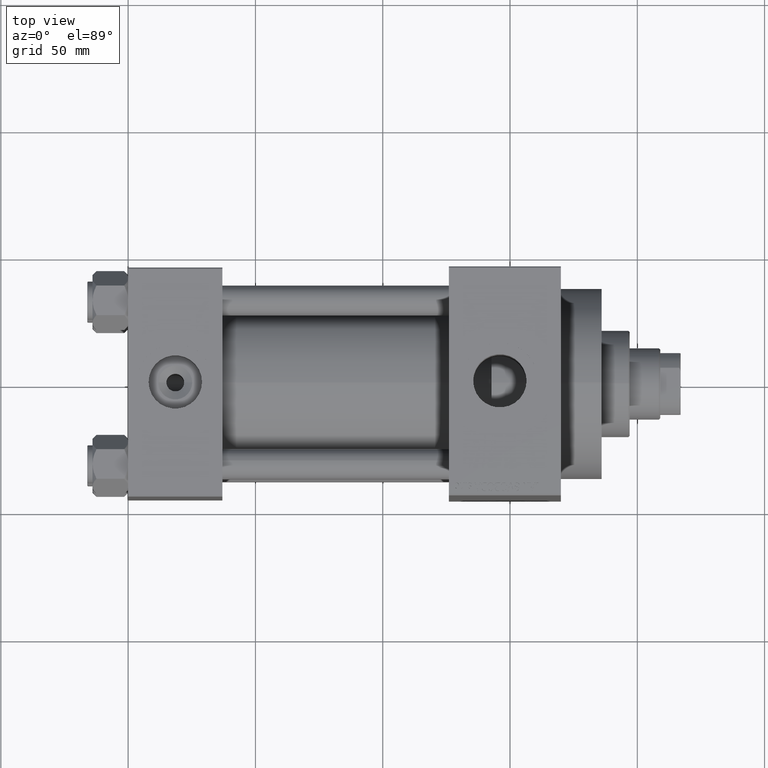
[diagram: clean part render]
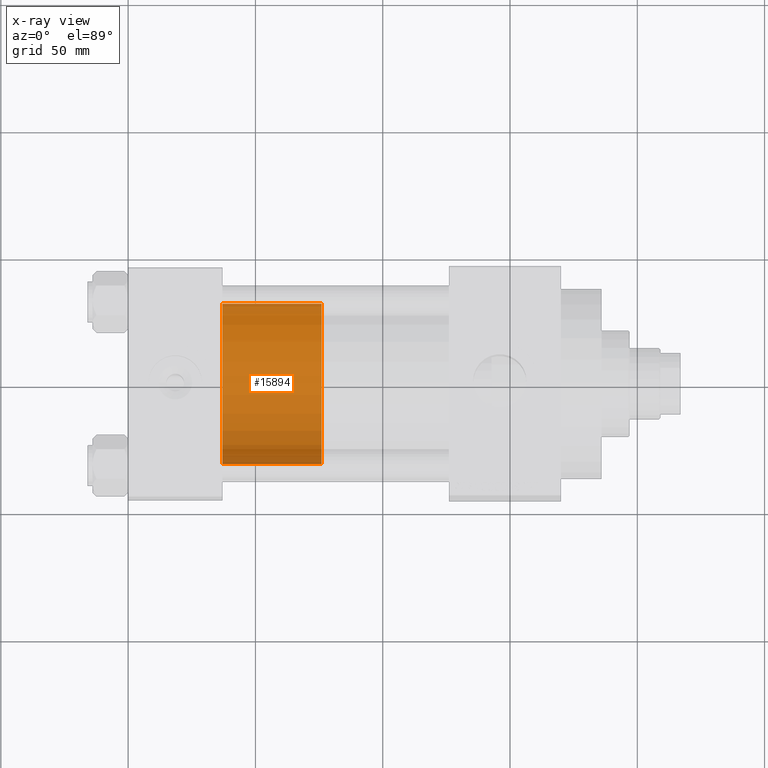
[diagram: x-ray — body ghosted, one internal face saturated and labeled with its STEP entity id]
A machine part, top view, then the same camera in x-ray: the body is ghosted and one INTERNAL B-rep face — a face not visible from any outside direction — is saturated and labeled: STEP entity #15894.
In plain terms, the highlighted cylindrical surface (partial cylindrical patch) has radius 31.5 mm, axis along (-1, 0, 0).
Its self-contained STEP definition (entity closure, byte-faithful):
#264 = VERTEX_POINT ( 'NONE', #7296 ) ;
#461 = CARTESIAN_POINT ( 'NONE',  ( 31.50000000000000000, 3.857637417314162689E-15, 39.00000000000000000 ) ) ;
#778 = LINE ( 'NONE', #12057, #3092 ) ;
#1185 = CIRCLE ( 'NONE', #24976, 31.50000000000000000 ) ;
#1262 = DIRECTION ( 'NONE',  ( -0.000000000000000000, -0.000000000000000000, -1.000000000000000000 ) ) ;
#1858 = CARTESIAN_POINT ( 'NONE',  ( -31.50000000000000000, 0.000000000000000000, 0.000000000000000000 ) ) ;
#3092 = VECTOR ( 'NONE', #1262, 1000.000000000000000 ) ;
#3240 = EDGE_CURVE ( 'NONE', #20582, #264, #46632, .T. ) ;
#3568 = CARTESIAN_POINT ( 'NONE',  ( -31.50000000000000000, 0.000000000000000000, 39.00000000000000000 ) ) ;
#6916 = VERTEX_POINT ( 'NONE', #1858 ) ;
#7296 = CARTESIAN_POINT ( 'NONE',  ( 31.50000000000000000, 3.857637417314162689E-15, 0.000000000000000000 ) ) ;
#7674 = CARTESIAN_POINT ( 'NONE',  ( 0.000000000000000000, 0.000000000000000000, 0.000000000000000000 ) ) ;
#9959 = CARTESIAN_POINT ( 'NONE',  ( 31.50000000000000000, 3.857637417314162689E-15, 39.00000000000000000 ) ) ;
#10399 = ORIENTED_EDGE ( 'NONE', *, *, #22129, .F. ) ;
#12057 = CARTESIAN_POINT ( 'NONE',  ( -31.50000000000000000, 0.000000000000000000, 39.00000000000000000 ) ) ;
#14265 = ORIENTED_EDGE ( 'NONE', *, *, #3240, .T. ) ;
#15454 = EDGE_LOOP ( 'NONE', ( #19166, #14265, #26885, #10399 ) ) ;
#15894 = ADVANCED_FACE ( 'NONE', ( #38188 ), #19953, .T. ) ;
#19166 = ORIENTED_EDGE ( 'NONE', *, *, #29799, .F. ) ;
#19953 = CYLINDRICAL_SURFACE ( 'NONE', #35762, 31.50000000000000000 ) ;
#20011 = CARTESIAN_POINT ( 'NONE',  ( 0.000000000000000000, 0.000000000000000000, 39.00000000000000000 ) ) ;
#20582 = VERTEX_POINT ( 'NONE', #461 ) ;
#22129 = EDGE_CURVE ( 'NONE', #22704, #6916, #778, .T. ) ;
#22704 = VERTEX_POINT ( 'NONE', #3568 ) ;
#23953 = VECTOR ( 'NONE', #27951, 1000.000000000000000 ) ;
#24976 = AXIS2_PLACEMENT_3D ( 'NONE', #7674, #32872, #26381 ) ;
#26381 = DIRECTION ( 'NONE',  ( 1.000000000000000000, 0.000000000000000000, 0.000000000000000000 ) ) ;
#26885 = ORIENTED_EDGE ( 'NONE', *, *, #31231, .T. ) ;
#27382 = CARTESIAN_POINT ( 'NONE',  ( 0.000000000000000000, 0.000000000000000000, 39.00000000000000000 ) ) ;
#27951 = DIRECTION ( 'NONE',  ( -0.000000000000000000, -0.000000000000000000, -1.000000000000000000 ) ) ;
#29799 = EDGE_CURVE ( 'NONE', #20582, #22704, #36399, .T. ) ;
#30553 = DIRECTION ( 'NONE',  ( 1.000000000000000000, 0.000000000000000000, 0.000000000000000000 ) ) ;
#31231 = EDGE_CURVE ( 'NONE', #264, #6916, #1185, .T. ) ;
#32872 = DIRECTION ( 'NONE',  ( 0.000000000000000000, 0.000000000000000000, 1.000000000000000000 ) ) ;
#34397 = DIRECTION ( 'NONE',  ( 0.000000000000000000, 0.000000000000000000, 1.000000000000000000 ) ) ;
#35762 = AXIS2_PLACEMENT_3D ( 'NONE', #27382, #43663, #40072 ) ;
#36399 = CIRCLE ( 'NONE', #44789, 31.50000000000000000 ) ;
#38188 = FACE_OUTER_BOUND ( 'NONE', #15454, .T. ) ;
#40072 = DIRECTION ( 'NONE',  ( -1.000000000000000000, 0.000000000000000000, 0.000000000000000000 ) ) ;
#43663 = DIRECTION ( 'NONE',  ( -0.000000000000000000, -0.000000000000000000, -1.000000000000000000 ) ) ;
#44789 = AXIS2_PLACEMENT_3D ( 'NONE', #20011, #34397, #30553 ) ;
#46632 = LINE ( 'NONE', #9959, #23953 ) ;